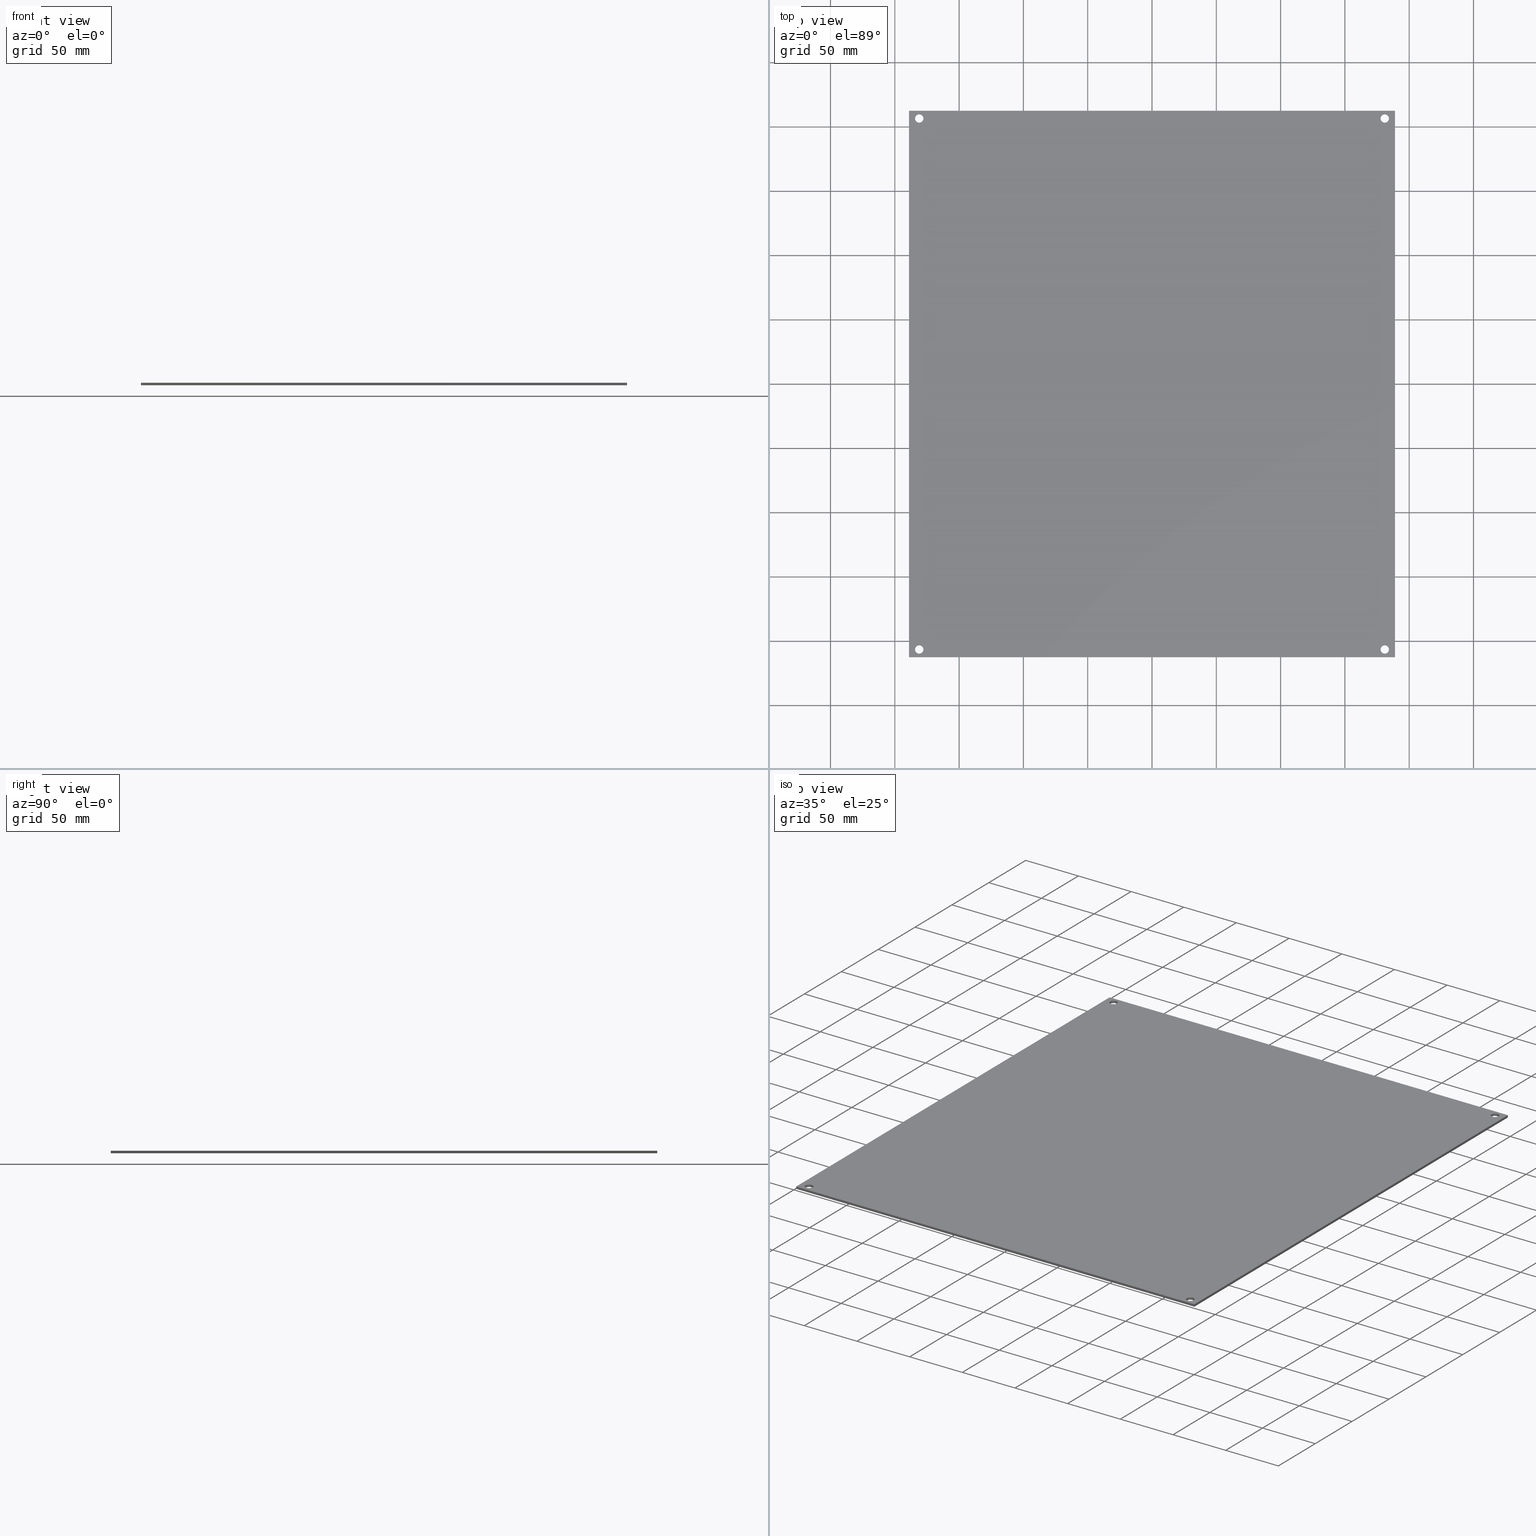
[diagram: canonical four-view strip — front | top / right | iso, engineering-drawing reading convention]
A machine part, canonical four-view strip (front | top / right | iso — engineering-drawing reading convention). The complete STEP part file that produces these views, byte-faithful:
ISO-10303-21;
HEADER;
FILE_DESCRIPTION (( 'STEP AP214' ),
    '1' );
FILE_NAME ('FIBOX_ABP1816.STEP',
    '2010-03-08T07:45:40',
    ( 'KennethW' ),
    ( 'FIBOX' ),
    'SwSTEP 2.0',
    'SolidWorks 2009',
    '' );
FILE_SCHEMA (( 'AUTOMOTIVE_DESIGN' ));
ENDSEC;

DATA;
#1 = ORIENTED_EDGE ( 'NONE', *, *, #137, .T. ) ;
#2 = EDGE_LOOP ( 'NONE', ( #4, #160, #167, #168 ) ) ;
#3 = ORIENTED_EDGE ( 'NONE', *, *, #24, .T. ) ;
#4 = ORIENTED_EDGE ( 'NONE', *, *, #59, .F. ) ;
#5 = ORIENTED_EDGE ( 'NONE', *, *, #6, .F. ) ;
#6 = EDGE_CURVE ( 'NONE', #66, #118, #399, .T. ) ;
#7 = ADVANCED_FACE ( 'NONE', ( #395 ), #394, .F. ) ;
#8 = EDGE_LOOP ( 'NONE', ( #9, #98, #60, #46 ) ) ;
#9 = ORIENTED_EDGE ( 'NONE', *, *, #54, .T. ) ;
#10 = VERTEX_POINT ( 'NONE', #392 ) ;
#11 = ORIENTED_EDGE ( 'NONE', *, *, #70, .T. ) ;
#12 = EDGE_CURVE ( 'NONE', #67, #65, #388, .T. ) ;
#13 = EDGE_CURVE ( 'NONE', #71, #10, #384, .T. ) ;
#14 = ADVANCED_FACE ( 'NONE', ( #380 ), #379, .F. ) ;
#15 = ORIENTED_EDGE ( 'NONE', *, *, #16, .T. ) ;
#16 = EDGE_CURVE ( 'NONE', #66, #68, #377, .T. ) ;
#17 = ORIENTED_EDGE ( 'NONE', *, *, #116, .T. ) ;
#18 = ORIENTED_EDGE ( 'NONE', *, *, #19, .F. ) ;
#19 = EDGE_CURVE ( 'NONE', #10, #65, #369, .T. ) ;
#20 = ORIENTED_EDGE ( 'NONE', *, *, #30, .T. ) ;
#21 = EDGE_LOOP ( 'NONE', ( #27, #1 ) ) ;
#22 = ORIENTED_EDGE ( 'NONE', *, *, #45, .T. ) ;
#23 = ORIENTED_EDGE ( 'NONE', *, *, #24, .F. ) ;
#24 = EDGE_CURVE ( 'NONE', #78, #114, #266, .T. ) ;
#25 = ORIENTED_EDGE ( 'NONE', *, *, #50, .F. ) ;
#26 = EDGE_LOOP ( 'NONE', ( #140, #23, #25, #36 ) ) ;
#27 = ORIENTED_EDGE ( 'NONE', *, *, #125, .T. ) ;
#28 = EDGE_LOOP ( 'NONE', ( #22, #32, #34, #144 ) ) ;
#29 = ADVANCED_FACE ( 'NONE', ( #262 ), #261, .F. ) ;
#30 = EDGE_CURVE ( 'NONE', #63, #86, #259, .T. ) ;
#31 = ADVANCED_FACE ( 'NONE', ( #252 ), #250, .F. ) ;
#32 = ORIENTED_EDGE ( 'NONE', *, *, #33, .F. ) ;
#33 = EDGE_CURVE ( 'NONE', #76, #43, #251, .T. ) ;
#34 = ORIENTED_EDGE ( 'NONE', *, *, #75, .F. ) ;
#35 = EDGE_LOOP ( 'NONE', ( #74, #142 ) ) ;
#36 = ORIENTED_EDGE ( 'NONE', *, *, #33, .T. ) ;
#37 = ADVANCED_FACE ( 'NONE', ( #242 ), #241, .F. ) ;
#38 = EDGE_LOOP ( 'NONE', ( #39, #40, #73, #3 ) ) ;
#39 = ORIENTED_EDGE ( 'NONE', *, *, #89, .T. ) ;
#40 = ORIENTED_EDGE ( 'NONE', *, *, #30, .F. ) ;
#41 = ORIENTED_EDGE ( 'NONE', *, *, #42, .F. ) ;
#42 = EDGE_CURVE ( 'NONE', #43, #114, #236, .T. ) ;
#43 = VERTEX_POINT ( 'NONE', #232 ) ;
#44 = ORIENTED_EDGE ( 'NONE', *, *, #45, .F. ) ;
#45 = EDGE_CURVE ( 'NONE', #87, #43, #231, .T. ) ;
#46 = ORIENTED_EDGE ( 'NONE', *, *, #96, .F. ) ;
#47 = EDGE_CURVE ( 'NONE', #63, #48, #227, .T. ) ;
#48 = VERTEX_POINT ( 'NONE', #223 ) ;
#49 = EDGE_LOOP ( 'NONE', ( #91, #92 ) ) ;
#50 = EDGE_CURVE ( 'NONE', #76, #78, #222, .T. ) ;
#51 = VERTEX_POINT ( 'NONE', #218 ) ;
#52 = ADVANCED_FACE ( 'NONE', ( #217, #216, #215, #214, #213 ), #212, .T. ) ;
#53 = ORIENTED_EDGE ( 'NONE', *, *, #75, .T. ) ;
#54 = EDGE_CURVE ( 'NONE', #51, #102, #207, .T. ) ;
#55 = ORIENTED_EDGE ( 'NONE', *, *, #70, .F. ) ;
#56 = ORIENTED_EDGE ( 'NONE', *, *, #57, .F. ) ;
#57 = EDGE_CURVE ( 'NONE', #68, #66, #202, .T. ) ;
#58 = EDGE_LOOP ( 'NONE', ( #90, #106 ) ) ;
#59 = EDGE_CURVE ( 'NONE', #102, #101, #197, .T. ) ;
#60 = ORIENTED_EDGE ( 'NONE', *, *, #100, .F. ) ;
#61 = EDGE_CURVE ( 'NONE', #102, #51, #193, .T. ) ;
#62 = ORIENTED_EDGE ( 'NONE', *, *, #47, .T. ) ;
#63 = VERTEX_POINT ( 'NONE', #188 ) ;
#64 = ORIENTED_EDGE ( 'NONE', *, *, #12, .T. ) ;
#65 = VERTEX_POINT ( 'NONE', #187 ) ;
#66 = VERTEX_POINT ( 'NONE', #186 ) ;
#67 = VERTEX_POINT ( 'NONE', #185 ) ;
#68 = VERTEX_POINT ( 'NONE', #184 ) ;
#69 = VERTEX_POINT ( 'NONE', #183 ) ;
#70 = EDGE_CURVE ( 'NONE', #71, #67, #182, .T. ) ;
#71 = VERTEX_POINT ( 'NONE', #177 ) ;
#72 = EDGE_CURVE ( 'NONE', #118, #69, #175, .T. ) ;
#73 = ORIENTED_EDGE ( 'NONE', *, *, #103, .F. ) ;
#74 = ORIENTED_EDGE ( 'NONE', *, *, #72, .T. ) ;
#75 = EDGE_CURVE ( 'NONE', #48, #76, #176, .T. ) ;
#76 = VERTEX_POINT ( 'NONE', #365 ) ;
#77 = ORIENTED_EDGE ( 'NONE', *, *, #50, .T. ) ;
#78 = VERTEX_POINT ( 'NONE', #364 ) ;
#79 = EDGE_CURVE ( 'NONE', #67, #71, #363, .T. ) ;
#80 = ORIENTED_EDGE ( 'NONE', *, *, #100, .T. ) ;
#81 = ORIENTED_EDGE ( 'NONE', *, *, #82, .T. ) ;
#82 = EDGE_CURVE ( 'NONE', #101, #110, #358, .T. ) ;
#83 = EDGE_LOOP ( 'NONE', ( #84, #88, #41, #44 ) ) ;
#84 = ORIENTED_EDGE ( 'NONE', *, *, #85, .F. ) ;
#85 = EDGE_CURVE ( 'NONE', #86, #87, #353, .T. ) ;
#86 = VERTEX_POINT ( 'NONE', #349 ) ;
#87 = VERTEX_POINT ( 'NONE', #348 ) ;
#88 = ORIENTED_EDGE ( 'NONE', *, *, #89, .F. ) ;
#89 = EDGE_CURVE ( 'NONE', #114, #86, #347, .T. ) ;
#90 = ORIENTED_EDGE ( 'NONE', *, *, #135, .F. ) ;
#91 = ORIENTED_EDGE ( 'NONE', *, *, #54, .F. ) ;
#92 = ORIENTED_EDGE ( 'NONE', *, *, #61, .F. ) ;
#93 = EDGE_LOOP ( 'NONE', ( #62, #53, #77, #99 ) ) ;
#94 = ORIENTED_EDGE ( 'NONE', *, *, #79, .F. ) ;
#95 = EDGE_CURVE ( 'NONE', #65, #10, #343, .T. ) ;
#96 = EDGE_CURVE ( 'NONE', #51, #110, #338, .T. ) ;
#97 = EDGE_LOOP ( 'NONE', ( #55, #94 ) ) ;
#98 = ORIENTED_EDGE ( 'NONE', *, *, #59, .T. ) ;
#99 = ORIENTED_EDGE ( 'NONE', *, *, #103, .T. ) ;
#100 = EDGE_CURVE ( 'NONE', #110, #101, #334, .T. ) ;
#101 = VERTEX_POINT ( 'NONE', #329 ) ;
#102 = VERTEX_POINT ( 'NONE', #328 ) ;
#103 = EDGE_CURVE ( 'NONE', #78, #63, #327, .T. ) ;
#104 = EDGE_LOOP ( 'NONE', ( #105, #56 ) ) ;
#105 = ORIENTED_EDGE ( 'NONE', *, *, #16, .F. ) ;
#106 = ORIENTED_EDGE ( 'NONE', *, *, #107, .F. ) ;
#107 = EDGE_CURVE ( 'NONE', #120, #136, #323, .T. ) ;
#108 = ADVANCED_FACE ( 'NONE', ( #318, #317, #316, #315, #314 ), #313, .F. ) ;
#109 = EDGE_LOOP ( 'NONE', ( #111, #112 ) ) ;
#110 = VERTEX_POINT ( 'NONE', #308 ) ;
#111 = ORIENTED_EDGE ( 'NONE', *, *, #19, .T. ) ;
#112 = ORIENTED_EDGE ( 'NONE', *, *, #95, .T. ) ;
#113 = EDGE_LOOP ( 'NONE', ( #80, #81 ) ) ;
#114 = VERTEX_POINT ( 'NONE', #307 ) ;
#115 = ORIENTED_EDGE ( 'NONE', *, *, #13, .F. ) ;
#116 = EDGE_CURVE ( 'NONE', #68, #69, #306, .T. ) ;
#117 = ORIENTED_EDGE ( 'NONE', *, *, #72, .F. ) ;
#118 = VERTEX_POINT ( 'NONE', #302 ) ;
#119 = EDGE_LOOP ( 'NONE', ( #15, #17, #117, #5 ) ) ;
#120 = VERTEX_POINT ( 'NONE', #301 ) ;
#121 = ORIENTED_EDGE ( 'NONE', *, *, #122, .T. ) ;
#122 = EDGE_CURVE ( 'NONE', #120, #123, #300, .T. ) ;
#123 = VERTEX_POINT ( 'NONE', #296 ) ;
#124 = ORIENTED_EDGE ( 'NONE', *, *, #125, .F. ) ;
#125 = EDGE_CURVE ( 'NONE', #126, #123, #295, .T. ) ;
#126 = VERTEX_POINT ( 'NONE', #290 ) ;
#127 = ORIENTED_EDGE ( 'NONE', *, *, #128, .F. ) ;
#128 = EDGE_CURVE ( 'NONE', #136, #126, #289, .T. ) ;
#129 = ADVANCED_FACE ( 'NONE', ( #285 ), #284, .F. ) ;
#130 = EDGE_LOOP ( 'NONE', ( #11, #64, #18, #115 ) ) ;
#131 = MANIFOLD_SOLID_BREP ( 'NONE', #157 ) ;
#132 = ADVANCED_FACE ( 'NONE', ( #404 ), #403, .F. ) ;
#133 = EDGE_LOOP ( 'NONE', ( #134, #121, #124, #127 ) ) ;
#134 = ORIENTED_EDGE ( 'NONE', *, *, #135, .T. ) ;
#135 = EDGE_CURVE ( 'NONE', #136, #120, #406, .T. ) ;
#136 = VERTEX_POINT ( 'NONE', #419 ) ;
#137 = EDGE_CURVE ( 'NONE', #123, #126, #417, .T. ) ;
#138 = ORIENTED_EDGE ( 'NONE', *, *, #146, .F. ) ;
#139 = ADVANCED_FACE ( 'NONE', ( #418 ), #411, .F. ) ;
#140 = ORIENTED_EDGE ( 'NONE', *, *, #42, .T. ) ;
#141 = EDGE_LOOP ( 'NONE', ( #143, #138, #147, #20 ) ) ;
#142 = ORIENTED_EDGE ( 'NONE', *, *, #145, .T. ) ;
#143 = ORIENTED_EDGE ( 'NONE', *, *, #85, .T. ) ;
#144 = ORIENTED_EDGE ( 'NONE', *, *, #146, .T. ) ;
#145 = EDGE_CURVE ( 'NONE', #69, #118, #443, .T. ) ;
#146 = EDGE_CURVE ( 'NONE', #48, #87, #461, .T. ) ;
#147 = ORIENTED_EDGE ( 'NONE', *, *, #47, .F. ) ;
#148 = ORIENTED_EDGE ( 'NONE', *, *, #13, .T. ) ;
#149 = ORIENTED_EDGE ( 'NONE', *, *, #95, .F. ) ;
#150 = ADVANCED_FACE ( 'NONE', ( #439 ), #427, .F. ) ;
#151 = EDGE_LOOP ( 'NONE', ( #152, #154, #155, #156 ) ) ;
#152 = ORIENTED_EDGE ( 'NONE', *, *, #122, .F. ) ;
#153 = EDGE_LOOP ( 'NONE', ( #166, #163, #169, #162 ) ) ;
#154 = ORIENTED_EDGE ( 'NONE', *, *, #107, .T. ) ;
#155 = ORIENTED_EDGE ( 'NONE', *, *, #128, .T. ) ;
#156 = ORIENTED_EDGE ( 'NONE', *, *, #137, .F. ) ;
#157 = CLOSED_SHELL ( 'NONE', ( #132, #129, #14, #7, #52, #108, #29, #31, #139, #37, #170, #165, #158, #150 ) ) ;
#158 = ADVANCED_FACE ( 'NONE', ( #432 ), #433, .F. ) ;
#159 = EDGE_LOOP ( 'NONE', ( #161, #164, #148, #149 ) ) ;
#160 = ORIENTED_EDGE ( 'NONE', *, *, #61, .T. ) ;
#161 = ORIENTED_EDGE ( 'NONE', *, *, #12, .F. ) ;
#162 = ORIENTED_EDGE ( 'NONE', *, *, #145, .F. ) ;
#163 = ORIENTED_EDGE ( 'NONE', *, *, #57, .T. ) ;
#164 = ORIENTED_EDGE ( 'NONE', *, *, #79, .T. ) ;
#165 = ADVANCED_FACE ( 'NONE', ( #434 ), #458, .F. ) ;
#166 = ORIENTED_EDGE ( 'NONE', *, *, #116, .F. ) ;
#167 = ORIENTED_EDGE ( 'NONE', *, *, #96, .T. ) ;
#168 = ORIENTED_EDGE ( 'NONE', *, *, #82, .F. ) ;
#169 = ORIENTED_EDGE ( 'NONE', *, *, #6, .T. ) ;
#170 = ADVANCED_FACE ( 'NONE', ( #456 ), #452, .F. ) ;
#171 = DIRECTION ( 'NONE',  ( 1.000000000000000000, 0.0000000000000000000, 0.0000000000000000000 ) ) ;
#172 = DIRECTION ( 'NONE',  ( 0.0000000000000000000, 0.0000000000000000000, 1.000000000000000000 ) ) ;
#173 = CARTESIAN_POINT ( 'NONE',  ( 181.0000000000000000, 206.5000000000000000, 0.0000000000000000000 ) ) ;
#174 = AXIS2_PLACEMENT_3D ( 'NONE', #173, #172, #171 ) ;
#175 = CIRCLE ( 'NONE', #174, 3.250000000000002700 ) ;
#176 = LINE ( 'NONE', #368, #367 ) ;
#177 = CARTESIAN_POINT ( 'NONE',  ( 177.7500000000000000, -206.5000000000000000, 2.000000000000000000 ) ) ;
#178 = DIRECTION ( 'NONE',  ( 1.000000000000000000, 0.0000000000000000000, 0.0000000000000000000 ) ) ;
#179 = DIRECTION ( 'NONE',  ( 0.0000000000000000000, 0.0000000000000000000, 1.000000000000000000 ) ) ;
#180 = CARTESIAN_POINT ( 'NONE',  ( 181.0000000000000000, -206.5000000000000000, 2.000000000000000000 ) ) ;
#181 = AXIS2_PLACEMENT_3D ( 'NONE', #180, #179, #178 ) ;
#182 = CIRCLE ( 'NONE', #181, 3.250000000000002700 ) ;
#183 = CARTESIAN_POINT ( 'NONE',  ( 184.2500000000000000, 206.5000000000000000, 0.0000000000000000000 ) ) ;
#184 = CARTESIAN_POINT ( 'NONE',  ( 184.2500000000000000, 206.5000000000000000, 2.000000000000000000 ) ) ;
#185 = CARTESIAN_POINT ( 'NONE',  ( 184.2500000000000000, -206.5000000000000000, 2.000000000000000000 ) ) ;
#186 = CARTESIAN_POINT ( 'NONE',  ( 177.7500000000000000, 206.5000000000000000, 2.000000000000000000 ) ) ;
#187 = CARTESIAN_POINT ( 'NONE',  ( 184.2500000000000000, -206.5000000000000000, 0.0000000000000000000 ) ) ;
#188 = CARTESIAN_POINT ( 'NONE',  ( -189.0000000000000000, 212.5000000000000000, 2.000000000000000000 ) ) ;
#189 = DIRECTION ( 'NONE',  ( 1.000000000000000000, 0.0000000000000000000, 0.0000000000000000000 ) ) ;
#190 = DIRECTION ( 'NONE',  ( 0.0000000000000000000, 0.0000000000000000000, 1.000000000000000000 ) ) ;
#191 = CARTESIAN_POINT ( 'NONE',  ( -181.0000000000000000, 206.5000000000000000, 2.000000000000000000 ) ) ;
#192 = AXIS2_PLACEMENT_3D ( 'NONE', #191, #190, #189 ) ;
#193 = CIRCLE ( 'NONE', #192, 3.250000000000002700 ) ;
#194 = DIRECTION ( 'NONE',  ( -0.0000000000000000000, -0.0000000000000000000, -1.000000000000000000 ) ) ;
#195 = VECTOR ( 'NONE', #194, 1000.000000000000000 ) ;
#196 = CARTESIAN_POINT ( 'NONE',  ( -177.7500000000000000, 206.5000000000000000, 2.000000000000000000 ) ) ;
#197 = LINE ( 'NONE', #196, #195 ) ;
#198 = DIRECTION ( 'NONE',  ( 1.000000000000000000, 0.0000000000000000000, 0.0000000000000000000 ) ) ;
#199 = DIRECTION ( 'NONE',  ( 0.0000000000000000000, 0.0000000000000000000, 1.000000000000000000 ) ) ;
#200 = CARTESIAN_POINT ( 'NONE',  ( 181.0000000000000000, 206.5000000000000000, 2.000000000000000000 ) ) ;
#201 = AXIS2_PLACEMENT_3D ( 'NONE', #200, #199, #198 ) ;
#202 = CIRCLE ( 'NONE', #201, 3.250000000000002700 ) ;
#203 = DIRECTION ( 'NONE',  ( 1.000000000000000000, 0.0000000000000000000, 0.0000000000000000000 ) ) ;
#204 = DIRECTION ( 'NONE',  ( 0.0000000000000000000, 0.0000000000000000000, 1.000000000000000000 ) ) ;
#205 = CARTESIAN_POINT ( 'NONE',  ( -181.0000000000000000, 206.5000000000000000, 2.000000000000000000 ) ) ;
#206 = AXIS2_PLACEMENT_3D ( 'NONE', #205, #204, #203 ) ;
#207 = CIRCLE ( 'NONE', #206, 3.250000000000002700 ) ;
#208 = DIRECTION ( 'NONE',  ( 1.000000000000000000, 0.0000000000000000000, 0.0000000000000000000 ) ) ;
#209 = DIRECTION ( 'NONE',  ( -0.0000000000000000000, 0.0000000000000000000, 1.000000000000000000 ) ) ;
#210 = CARTESIAN_POINT ( 'NONE',  ( -189.0000000000000300, -212.5000000000000000, 2.000000000000000000 ) ) ;
#211 = AXIS2_PLACEMENT_3D ( 'NONE', #210, #209, #208 ) ;
#212 = PLANE ( 'NONE',  #211 ) ;
#213 = FACE_BOUND ( 'NONE', #58, .T. ) ;
#214 = FACE_BOUND ( 'NONE', #104, .T. ) ;
#215 = FACE_OUTER_BOUND ( 'NONE', #93, .T. ) ;
#216 = FACE_BOUND ( 'NONE', #49, .T. ) ;
#217 = FACE_BOUND ( 'NONE', #97, .T. ) ;
#218 = CARTESIAN_POINT ( 'NONE',  ( -184.2500000000000000, 206.5000000000000000, 2.000000000000000000 ) ) ;
#219 = DIRECTION ( 'NONE',  ( -6.530723674265626900E-017, 1.000000000000000000, -0.0000000000000000000 ) ) ;
#220 = VECTOR ( 'NONE', #219, 1000.000000000000000 ) ;
#221 = CARTESIAN_POINT ( 'NONE',  ( 189.0000000000000000, 212.5000000000000000, 2.000000000000000000 ) ) ;
#222 = LINE ( 'NONE', #221, #220 ) ;
#223 = CARTESIAN_POINT ( 'NONE',  ( -189.0000000000000300, -212.5000000000000000, 2.000000000000000000 ) ) ;
#224 = DIRECTION ( 'NONE',  ( -6.530723674265626900E-017, -1.000000000000000000, 0.0000000000000000000 ) ) ;
#225 = VECTOR ( 'NONE', #224, 1000.000000000000000 ) ;
#226 = CARTESIAN_POINT ( 'NONE',  ( -189.0000000000000000, 212.5000000000000000, 2.000000000000000000 ) ) ;
#227 = LINE ( 'NONE', #226, #225 ) ;
#228 = DIRECTION ( 'NONE',  ( 1.000000000000000000, 0.0000000000000000000, 0.0000000000000000000 ) ) ;
#229 = VECTOR ( 'NONE', #228, 1000.000000000000000 ) ;
#230 = CARTESIAN_POINT ( 'NONE',  ( -189.0000000000000300, -212.5000000000000000, 0.0000000000000000000 ) ) ;
#231 = LINE ( 'NONE', #230, #229 ) ;
#232 = CARTESIAN_POINT ( 'NONE',  ( 189.0000000000000300, -212.5000000000000000, 0.0000000000000000000 ) ) ;
#233 = DIRECTION ( 'NONE',  ( -6.530723674265626900E-017, 1.000000000000000000, -0.0000000000000000000 ) ) ;
#234 = VECTOR ( 'NONE', #233, 1000.000000000000000 ) ;
#235 = CARTESIAN_POINT ( 'NONE',  ( 189.0000000000000000, 212.5000000000000000, 0.0000000000000000000 ) ) ;
#236 = LINE ( 'NONE', #235, #234 ) ;
#237 = DIRECTION ( 'NONE',  ( 0.0000000000000000000, -0.0000000000000000000, -1.000000000000000000 ) ) ;
#238 = DIRECTION ( 'NONE',  ( 0.0000000000000000000, -1.000000000000000000, 0.0000000000000000000 ) ) ;
#239 = CARTESIAN_POINT ( 'NONE',  ( -189.0000000000000000, 212.5000000000000000, 2.000000000000000000 ) ) ;
#240 = AXIS2_PLACEMENT_3D ( 'NONE', #239, #238, #237 ) ;
#241 = PLANE ( 'NONE',  #240 ) ;
#242 = FACE_OUTER_BOUND ( 'NONE', #38, .T. ) ;
#243 = DIRECTION ( 'NONE',  ( -0.0000000000000000000, -0.0000000000000000000, -1.000000000000000000 ) ) ;
#244 = VECTOR ( 'NONE', #243, 1000.000000000000000 ) ;
#245 = CARTESIAN_POINT ( 'NONE',  ( 189.0000000000000300, -212.5000000000000000, 2.000000000000000000 ) ) ;
#246 = DIRECTION ( 'NONE',  ( 0.0000000000000000000, -0.0000000000000000000, 1.000000000000000000 ) ) ;
#247 = DIRECTION ( 'NONE',  ( 0.0000000000000000000, 1.000000000000000000, 0.0000000000000000000 ) ) ;
#248 = CARTESIAN_POINT ( 'NONE',  ( -189.0000000000000300, -212.5000000000000000, 2.000000000000000000 ) ) ;
#249 = AXIS2_PLACEMENT_3D ( 'NONE', #248, #247, #246 ) ;
#250 = PLANE ( 'NONE',  #249 ) ;
#251 = LINE ( 'NONE', #245, #244 ) ;
#252 = FACE_OUTER_BOUND ( 'NONE', #28, .T. ) ;
#253 = DIRECTION ( 'NONE',  ( -0.0000000000000000000, -0.0000000000000000000, -1.000000000000000000 ) ) ;
#254 = VECTOR ( 'NONE', #253, 1000.000000000000000 ) ;
#255 = CARTESIAN_POINT ( 'NONE',  ( -189.0000000000000000, 212.5000000000000000, 2.000000000000000000 ) ) ;
#256 = DIRECTION ( 'NONE',  ( 6.530723674265626900E-017, 1.000000000000000000, 0.0000000000000000000 ) ) ;
#257 = DIRECTION ( 'NONE',  ( 1.000000000000000000, -6.530723674265626900E-017, 0.0000000000000000000 ) ) ;
#258 = CARTESIAN_POINT ( 'NONE',  ( -189.0000000000000000, 212.5000000000000000, 2.000000000000000000 ) ) ;
#259 = LINE ( 'NONE', #255, #254 ) ;
#260 = AXIS2_PLACEMENT_3D ( 'NONE', #258, #257, #256 ) ;
#261 = PLANE ( 'NONE',  #260 ) ;
#262 = FACE_OUTER_BOUND ( 'NONE', #141, .T. ) ;
#263 = DIRECTION ( 'NONE',  ( -0.0000000000000000000, -0.0000000000000000000, -1.000000000000000000 ) ) ;
#264 = VECTOR ( 'NONE', #263, 1000.000000000000000 ) ;
#265 = CARTESIAN_POINT ( 'NONE',  ( 189.0000000000000000, 212.5000000000000000, 2.000000000000000000 ) ) ;
#266 = LINE ( 'NONE', #265, #264 ) ;
#267 = DIRECTION ( 'NONE',  ( 1.000000000000000000, 0.0000000000000000000, 0.0000000000000000000 ) ) ;
#268 = DIRECTION ( 'NONE',  ( 0.0000000000000000000, 0.0000000000000000000, 1.000000000000000000 ) ) ;
#269 = CARTESIAN_POINT ( 'NONE',  ( 181.0000000000000000, -206.5000000000000000, 0.0000000000000000000 ) ) ;
#270 = AXIS2_PLACEMENT_3D ( 'NONE', #269, #268, #267 ) ;
#271 = PRESENTATION_LAYER_ASSIGNMENT (  '', '', ( #272 ) ) ;
#272 = STYLED_ITEM ( 'NONE', ( #273 ), #131 ) ;
#273 = PRESENTATION_STYLE_ASSIGNMENT (( #274 ) ) ;
#274 = SURFACE_STYLE_USAGE ( .BOTH. , #275 ) ;
#275 = SURFACE_SIDE_STYLE ('',( #276 ) ) ;
#276 = SURFACE_STYLE_FILL_AREA ( #277 ) ;
#277 = FILL_AREA_STYLE ('',( #282 ) ) ;
#278 = DIRECTION ( 'NONE',  ( -1.000000000000000000, 0.0000000000000000000, 0.0000000000000000000 ) ) ;
#279 = DIRECTION ( 'NONE',  ( -0.0000000000000000000, -0.0000000000000000000, -1.000000000000000000 ) ) ;
#280 = AXIS2_PLACEMENT_3D ( 'NONE', #283, #279, #278 ) ;
#281 = COLOUR_RGB ( '',0.7529411764705882200, 0.7529411764705882200, 0.7529411764705882200 ) ;
#282 = FILL_AREA_STYLE_COLOUR ( '', #281 ) ;
#283 = CARTESIAN_POINT ( 'NONE',  ( 181.0000000000000000, -206.5000000000000000, 2.000000000000000000 ) ) ;
#284 = CYLINDRICAL_SURFACE ( 'NONE', #280, 3.250000000000002700 ) ;
#285 = FACE_OUTER_BOUND ( 'NONE', #130, .T. ) ;
#286 = DIRECTION ( 'NONE',  ( -0.0000000000000000000, -0.0000000000000000000, -1.000000000000000000 ) ) ;
#287 = VECTOR ( 'NONE', #286, 1000.000000000000000 ) ;
#288 = CARTESIAN_POINT ( 'NONE',  ( -184.2500000000000000, -206.5000000000000000, 2.000000000000000000 ) ) ;
#289 = LINE ( 'NONE', #288, #287 ) ;
#290 = CARTESIAN_POINT ( 'NONE',  ( -184.2500000000000000, -206.5000000000000000, 0.0000000000000000000 ) ) ;
#291 = DIRECTION ( 'NONE',  ( 1.000000000000000000, 0.0000000000000000000, 0.0000000000000000000 ) ) ;
#292 = DIRECTION ( 'NONE',  ( 0.0000000000000000000, 0.0000000000000000000, 1.000000000000000000 ) ) ;
#293 = CARTESIAN_POINT ( 'NONE',  ( -181.0000000000000000, -206.5000000000000000, 0.0000000000000000000 ) ) ;
#294 = AXIS2_PLACEMENT_3D ( 'NONE', #293, #292, #291 ) ;
#295 = CIRCLE ( 'NONE', #294, 3.250000000000002700 ) ;
#296 = CARTESIAN_POINT ( 'NONE',  ( -177.7500000000000000, -206.5000000000000000, 0.0000000000000000000 ) ) ;
#297 = DIRECTION ( 'NONE',  ( -0.0000000000000000000, -0.0000000000000000000, -1.000000000000000000 ) ) ;
#298 = VECTOR ( 'NONE', #297, 1000.000000000000000 ) ;
#299 = CARTESIAN_POINT ( 'NONE',  ( -177.7500000000000000, -206.5000000000000000, 2.000000000000000000 ) ) ;
#300 = LINE ( 'NONE', #299, #298 ) ;
#301 = CARTESIAN_POINT ( 'NONE',  ( -177.7500000000000000, -206.5000000000000000, 2.000000000000000000 ) ) ;
#302 = CARTESIAN_POINT ( 'NONE',  ( 177.7500000000000000, 206.5000000000000000, 0.0000000000000000000 ) ) ;
#303 = DIRECTION ( 'NONE',  ( -0.0000000000000000000, -0.0000000000000000000, -1.000000000000000000 ) ) ;
#304 = VECTOR ( 'NONE', #303, 1000.000000000000000 ) ;
#305 = CARTESIAN_POINT ( 'NONE',  ( 184.2500000000000000, 206.5000000000000000, 2.000000000000000000 ) ) ;
#306 = LINE ( 'NONE', #305, #304 ) ;
#307 = CARTESIAN_POINT ( 'NONE',  ( 189.0000000000000000, 212.5000000000000000, 0.0000000000000000000 ) ) ;
#308 = CARTESIAN_POINT ( 'NONE',  ( -184.2500000000000000, 206.5000000000000000, 0.0000000000000000000 ) ) ;
#309 = DIRECTION ( 'NONE',  ( 1.000000000000000000, 0.0000000000000000000, 0.0000000000000000000 ) ) ;
#310 = DIRECTION ( 'NONE',  ( -0.0000000000000000000, 0.0000000000000000000, 1.000000000000000000 ) ) ;
#311 = CARTESIAN_POINT ( 'NONE',  ( -189.0000000000000300, -212.5000000000000000, 0.0000000000000000000 ) ) ;
#312 = AXIS2_PLACEMENT_3D ( 'NONE', #311, #310, #309 ) ;
#313 = PLANE ( 'NONE',  #312 ) ;
#314 = FACE_BOUND ( 'NONE', #21, .T. ) ;
#315 = FACE_BOUND ( 'NONE', #35, .T. ) ;
#316 = FACE_OUTER_BOUND ( 'NONE', #83, .T. ) ;
#317 = FACE_BOUND ( 'NONE', #113, .T. ) ;
#318 = FACE_BOUND ( 'NONE', #109, .T. ) ;
#319 = DIRECTION ( 'NONE',  ( 1.000000000000000000, 0.0000000000000000000, 0.0000000000000000000 ) ) ;
#320 = DIRECTION ( 'NONE',  ( 0.0000000000000000000, 0.0000000000000000000, 1.000000000000000000 ) ) ;
#321 = CARTESIAN_POINT ( 'NONE',  ( -181.0000000000000000, -206.5000000000000000, 2.000000000000000000 ) ) ;
#322 = AXIS2_PLACEMENT_3D ( 'NONE', #321, #320, #319 ) ;
#323 = CIRCLE ( 'NONE', #322, 3.250000000000002700 ) ;
#324 = DIRECTION ( 'NONE',  ( -1.000000000000000000, -0.0000000000000000000, -0.0000000000000000000 ) ) ;
#325 = VECTOR ( 'NONE', #324, 1000.000000000000000 ) ;
#326 = CARTESIAN_POINT ( 'NONE',  ( -189.0000000000000000, 212.5000000000000000, 2.000000000000000000 ) ) ;
#327 = LINE ( 'NONE', #326, #325 ) ;
#328 = CARTESIAN_POINT ( 'NONE',  ( -177.7500000000000000, 206.5000000000000000, 2.000000000000000000 ) ) ;
#329 = CARTESIAN_POINT ( 'NONE',  ( -177.7500000000000000, 206.5000000000000000, 0.0000000000000000000 ) ) ;
#330 = DIRECTION ( 'NONE',  ( 1.000000000000000000, 0.0000000000000000000, 0.0000000000000000000 ) ) ;
#331 = DIRECTION ( 'NONE',  ( 0.0000000000000000000, 0.0000000000000000000, 1.000000000000000000 ) ) ;
#332 = CARTESIAN_POINT ( 'NONE',  ( -181.0000000000000000, 206.5000000000000000, 0.0000000000000000000 ) ) ;
#333 = AXIS2_PLACEMENT_3D ( 'NONE', #332, #331, #330 ) ;
#334 = CIRCLE ( 'NONE', #333, 3.250000000000002700 ) ;
#335 = DIRECTION ( 'NONE',  ( -0.0000000000000000000, -0.0000000000000000000, -1.000000000000000000 ) ) ;
#336 = VECTOR ( 'NONE', #335, 1000.000000000000000 ) ;
#337 = CARTESIAN_POINT ( 'NONE',  ( -184.2500000000000000, 206.5000000000000000, 2.000000000000000000 ) ) ;
#338 = LINE ( 'NONE', #337, #336 ) ;
#339 = DIRECTION ( 'NONE',  ( 1.000000000000000000, 0.0000000000000000000, 0.0000000000000000000 ) ) ;
#340 = DIRECTION ( 'NONE',  ( 0.0000000000000000000, 0.0000000000000000000, 1.000000000000000000 ) ) ;
#341 = CARTESIAN_POINT ( 'NONE',  ( 181.0000000000000000, -206.5000000000000000, 0.0000000000000000000 ) ) ;
#342 = AXIS2_PLACEMENT_3D ( 'NONE', #341, #340, #339 ) ;
#343 = CIRCLE ( 'NONE', #342, 3.250000000000002700 ) ;
#344 = DIRECTION ( 'NONE',  ( -1.000000000000000000, -0.0000000000000000000, -0.0000000000000000000 ) ) ;
#345 = VECTOR ( 'NONE', #344, 1000.000000000000000 ) ;
#346 = CARTESIAN_POINT ( 'NONE',  ( -189.0000000000000000, 212.5000000000000000, 0.0000000000000000000 ) ) ;
#347 = LINE ( 'NONE', #346, #345 ) ;
#348 = CARTESIAN_POINT ( 'NONE',  ( -189.0000000000000300, -212.5000000000000000, 0.0000000000000000000 ) ) ;
#349 = CARTESIAN_POINT ( 'NONE',  ( -189.0000000000000000, 212.5000000000000000, 0.0000000000000000000 ) ) ;
#350 = DIRECTION ( 'NONE',  ( -6.530723674265626900E-017, -1.000000000000000000, 0.0000000000000000000 ) ) ;
#351 = VECTOR ( 'NONE', #350, 1000.000000000000000 ) ;
#352 = CARTESIAN_POINT ( 'NONE',  ( -189.0000000000000000, 212.5000000000000000, 0.0000000000000000000 ) ) ;
#353 = LINE ( 'NONE', #352, #351 ) ;
#354 = DIRECTION ( 'NONE',  ( 1.000000000000000000, 0.0000000000000000000, 0.0000000000000000000 ) ) ;
#355 = DIRECTION ( 'NONE',  ( 0.0000000000000000000, 0.0000000000000000000, 1.000000000000000000 ) ) ;
#356 = CARTESIAN_POINT ( 'NONE',  ( -181.0000000000000000, 206.5000000000000000, 0.0000000000000000000 ) ) ;
#357 = AXIS2_PLACEMENT_3D ( 'NONE', #356, #355, #354 ) ;
#358 = CIRCLE ( 'NONE', #357, 3.250000000000002700 ) ;
#359 = DIRECTION ( 'NONE',  ( 1.000000000000000000, 0.0000000000000000000, 0.0000000000000000000 ) ) ;
#360 = DIRECTION ( 'NONE',  ( 0.0000000000000000000, 0.0000000000000000000, 1.000000000000000000 ) ) ;
#361 = CARTESIAN_POINT ( 'NONE',  ( 181.0000000000000000, -206.5000000000000000, 2.000000000000000000 ) ) ;
#362 = AXIS2_PLACEMENT_3D ( 'NONE', #361, #360, #359 ) ;
#363 = CIRCLE ( 'NONE', #362, 3.250000000000002700 ) ;
#364 = CARTESIAN_POINT ( 'NONE',  ( 189.0000000000000000, 212.5000000000000000, 2.000000000000000000 ) ) ;
#365 = CARTESIAN_POINT ( 'NONE',  ( 189.0000000000000300, -212.5000000000000000, 2.000000000000000000 ) ) ;
#366 = DIRECTION ( 'NONE',  ( 1.000000000000000000, 0.0000000000000000000, 0.0000000000000000000 ) ) ;
#367 = VECTOR ( 'NONE', #366, 1000.000000000000000 ) ;
#368 = CARTESIAN_POINT ( 'NONE',  ( -189.0000000000000300, -212.5000000000000000, 2.000000000000000000 ) ) ;
#369 = CIRCLE ( 'NONE', #270, 3.250000000000002700 ) ;
#370 = DIRECTION ( 'NONE',  ( 1.000000000000000000, 0.0000000000000000000, 0.0000000000000000000 ) ) ;
#371 = DIRECTION ( 'NONE',  ( 0.0000000000000000000, 0.0000000000000000000, 1.000000000000000000 ) ) ;
#372 = CARTESIAN_POINT ( 'NONE',  ( 181.0000000000000000, 206.5000000000000000, 2.000000000000000000 ) ) ;
#373 = AXIS2_PLACEMENT_3D ( 'NONE', #372, #371, #370 ) ;
#374 = DIRECTION ( 'NONE',  ( -1.000000000000000000, 0.0000000000000000000, 0.0000000000000000000 ) ) ;
#375 = DIRECTION ( 'NONE',  ( -0.0000000000000000000, -0.0000000000000000000, -1.000000000000000000 ) ) ;
#376 = AXIS2_PLACEMENT_3D ( 'NONE', #378, #375, #374 ) ;
#377 = CIRCLE ( 'NONE', #373, 3.250000000000002700 ) ;
#378 = CARTESIAN_POINT ( 'NONE',  ( 181.0000000000000000, 206.5000000000000000, 2.000000000000000000 ) ) ;
#379 = CYLINDRICAL_SURFACE ( 'NONE', #376, 3.250000000000002700 ) ;
#380 = FACE_OUTER_BOUND ( 'NONE', #119, .T. ) ;
#381 = DIRECTION ( 'NONE',  ( -0.0000000000000000000, -0.0000000000000000000, -1.000000000000000000 ) ) ;
#382 = VECTOR ( 'NONE', #381, 1000.000000000000000 ) ;
#383 = CARTESIAN_POINT ( 'NONE',  ( 177.7500000000000000, -206.5000000000000000, 2.000000000000000000 ) ) ;
#384 = LINE ( 'NONE', #383, #382 ) ;
#385 = DIRECTION ( 'NONE',  ( -0.0000000000000000000, -0.0000000000000000000, -1.000000000000000000 ) ) ;
#386 = VECTOR ( 'NONE', #385, 1000.000000000000000 ) ;
#387 = CARTESIAN_POINT ( 'NONE',  ( 184.2500000000000000, -206.5000000000000000, 2.000000000000000000 ) ) ;
#388 = LINE ( 'NONE', #387, #386 ) ;
#389 = DIRECTION ( 'NONE',  ( -1.000000000000000000, 0.0000000000000000000, 0.0000000000000000000 ) ) ;
#390 = DIRECTION ( 'NONE',  ( -0.0000000000000000000, -0.0000000000000000000, -1.000000000000000000 ) ) ;
#391 = AXIS2_PLACEMENT_3D ( 'NONE', #393, #390, #389 ) ;
#392 = CARTESIAN_POINT ( 'NONE',  ( 177.7500000000000000, -206.5000000000000000, 0.0000000000000000000 ) ) ;
#393 = CARTESIAN_POINT ( 'NONE',  ( -181.0000000000000000, 206.5000000000000000, 2.000000000000000000 ) ) ;
#394 = CYLINDRICAL_SURFACE ( 'NONE', #391, 3.250000000000002700 ) ;
#395 = FACE_OUTER_BOUND ( 'NONE', #8, .T. ) ;
#396 = DIRECTION ( 'NONE',  ( -0.0000000000000000000, -0.0000000000000000000, -1.000000000000000000 ) ) ;
#397 = VECTOR ( 'NONE', #396, 1000.000000000000000 ) ;
#398 = CARTESIAN_POINT ( 'NONE',  ( 177.7500000000000000, 206.5000000000000000, 2.000000000000000000 ) ) ;
#399 = LINE ( 'NONE', #398, #397 ) ;
#400 = MECHANICAL_DESIGN_GEOMETRIC_PRESENTATION_REPRESENTATION (  '', ( #272 ), #405 ) ;
#401 =( NAMED_UNIT ( * ) SI_UNIT ( $, .STERADIAN. ) SOLID_ANGLE_UNIT ( ) );
#402 = UNCERTAINTY_MEASURE_WITH_UNIT (LENGTH_MEASURE( 1.000000000000000100E-005 ), #425, 'distance_accuracy_value', 'NONE');
#403 = CYLINDRICAL_SURFACE ( 'NONE', #410, 3.250000000000002700 ) ;
#404 = FACE_OUTER_BOUND ( 'NONE', #133, .T. ) ;
#405 =( GEOMETRIC_REPRESENTATION_CONTEXT ( 3 ) GLOBAL_UNCERTAINTY_ASSIGNED_CONTEXT ( ( #402 ) ) GLOBAL_UNIT_ASSIGNED_CONTEXT ( ( #425, #424, #401 ) ) REPRESENTATION_CONTEXT ( 'NONE', 'WORKASPACE' ) );
#406 = CIRCLE ( 'NONE', #423, 3.250000000000002700 ) ;
#407 = DIRECTION ( 'NONE',  ( -1.000000000000000000, 0.0000000000000000000, 0.0000000000000000000 ) ) ;
#408 = DIRECTION ( 'NONE',  ( -0.0000000000000000000, -0.0000000000000000000, -1.000000000000000000 ) ) ;
#409 = CARTESIAN_POINT ( 'NONE',  ( -181.0000000000000000, -206.5000000000000000, 2.000000000000000000 ) ) ;
#410 = AXIS2_PLACEMENT_3D ( 'NONE', #409, #408, #407 ) ;
#411 = PLANE ( 'NONE',  #412 ) ;
#412 = AXIS2_PLACEMENT_3D ( 'NONE', #429, #441, #428 ) ;
#413 = DIRECTION ( 'NONE',  ( 1.000000000000000000, 0.0000000000000000000, 0.0000000000000000000 ) ) ;
#414 = DIRECTION ( 'NONE',  ( 0.0000000000000000000, 0.0000000000000000000, 1.000000000000000000 ) ) ;
#415 = CARTESIAN_POINT ( 'NONE',  ( -181.0000000000000000, -206.5000000000000000, 0.0000000000000000000 ) ) ;
#416 = AXIS2_PLACEMENT_3D ( 'NONE', #415, #414, #413 ) ;
#417 = CIRCLE ( 'NONE', #416, 3.250000000000002700 ) ;
#418 = FACE_OUTER_BOUND ( 'NONE', #26, .T. ) ;
#419 = CARTESIAN_POINT ( 'NONE',  ( -184.2500000000000000, -206.5000000000000000, 2.000000000000000000 ) ) ;
#420 = DIRECTION ( 'NONE',  ( 1.000000000000000000, 0.0000000000000000000, 0.0000000000000000000 ) ) ;
#421 = DIRECTION ( 'NONE',  ( 0.0000000000000000000, 0.0000000000000000000, 1.000000000000000000 ) ) ;
#422 = CARTESIAN_POINT ( 'NONE',  ( -181.0000000000000000, -206.5000000000000000, 2.000000000000000000 ) ) ;
#423 = AXIS2_PLACEMENT_3D ( 'NONE', #422, #421, #420 ) ;
#424 =( NAMED_UNIT ( * ) PLANE_ANGLE_UNIT ( ) SI_UNIT ( $, .RADIAN. ) );
#425 =( LENGTH_UNIT ( ) NAMED_UNIT ( * ) SI_UNIT ( .MILLI., .METRE. ) );
#426 = DIRECTION ( 'NONE',  ( -0.0000000000000000000, -0.0000000000000000000, -1.000000000000000000 ) ) ;
#427 = CYLINDRICAL_SURFACE ( 'NONE', #438, 3.250000000000002700 ) ;
#428 = DIRECTION ( 'NONE',  ( 6.530723674265626900E-017, -1.000000000000000000, 0.0000000000000000000 ) ) ;
#429 = CARTESIAN_POINT ( 'NONE',  ( 189.0000000000000000, 212.5000000000000000, 2.000000000000000000 ) ) ;
#430 = DIRECTION ( 'NONE',  ( -1.000000000000000000, 0.0000000000000000000, 0.0000000000000000000 ) ) ;
#431 = DIRECTION ( 'NONE',  ( -0.0000000000000000000, -0.0000000000000000000, -1.000000000000000000 ) ) ;
#432 = FACE_OUTER_BOUND ( 'NONE', #159, .T. ) ;
#433 = CYLINDRICAL_SURFACE ( 'NONE', #436, 3.250000000000002700 ) ;
#434 = FACE_OUTER_BOUND ( 'NONE', #153, .T. ) ;
#435 = CARTESIAN_POINT ( 'NONE',  ( 181.0000000000000000, -206.5000000000000000, 2.000000000000000000 ) ) ;
#436 = AXIS2_PLACEMENT_3D ( 'NONE', #435, #460, #459 ) ;
#437 = CARTESIAN_POINT ( 'NONE',  ( -181.0000000000000000, -206.5000000000000000, 2.000000000000000000 ) ) ;
#438 = AXIS2_PLACEMENT_3D ( 'NONE', #437, #431, #430 ) ;
#439 = FACE_OUTER_BOUND ( 'NONE', #151, .T. ) ;
#440 = CARTESIAN_POINT ( 'NONE',  ( -189.0000000000000300, -212.5000000000000000, 2.000000000000000000 ) ) ;
#441 = DIRECTION ( 'NONE',  ( -1.000000000000000000, -6.530723674265626900E-017, 0.0000000000000000000 ) ) ;
#442 = DIRECTION ( 'NONE',  ( 1.000000000000000000, 0.0000000000000000000, 0.0000000000000000000 ) ) ;
#443 = CIRCLE ( 'NONE', #445, 3.250000000000002700 ) ;
#444 = DIRECTION ( 'NONE',  ( 0.0000000000000000000, 0.0000000000000000000, 1.000000000000000000 ) ) ;
#445 = AXIS2_PLACEMENT_3D ( 'NONE', #446, #444, #442 ) ;
#446 = CARTESIAN_POINT ( 'NONE',  ( 181.0000000000000000, 206.5000000000000000, 0.0000000000000000000 ) ) ;
#447 = VECTOR ( 'NONE', #426, 1000.000000000000000 ) ;
#448 = DIRECTION ( 'NONE',  ( -1.000000000000000000, 0.0000000000000000000, 0.0000000000000000000 ) ) ;
#449 = DIRECTION ( 'NONE',  ( -0.0000000000000000000, -0.0000000000000000000, -1.000000000000000000 ) ) ;
#450 = AXIS2_PLACEMENT_3D ( 'NONE', #451, #449, #448 ) ;
#451 = CARTESIAN_POINT ( 'NONE',  ( -181.0000000000000000, 206.5000000000000000, 2.000000000000000000 ) ) ;
#452 = CYLINDRICAL_SURFACE ( 'NONE', #450, 3.250000000000002700 ) ;
#453 = DIRECTION ( 'NONE',  ( -1.000000000000000000, 0.0000000000000000000, 0.0000000000000000000 ) ) ;
#454 = DIRECTION ( 'NONE',  ( -0.0000000000000000000, -0.0000000000000000000, -1.000000000000000000 ) ) ;
#455 = AXIS2_PLACEMENT_3D ( 'NONE', #457, #454, #453 ) ;
#456 = FACE_OUTER_BOUND ( 'NONE', #2, .T. ) ;
#457 = CARTESIAN_POINT ( 'NONE',  ( 181.0000000000000000, 206.5000000000000000, 2.000000000000000000 ) ) ;
#458 = CYLINDRICAL_SURFACE ( 'NONE', #455, 3.250000000000002700 ) ;
#459 = DIRECTION ( 'NONE',  ( -1.000000000000000000, 0.0000000000000000000, 0.0000000000000000000 ) ) ;
#460 = DIRECTION ( 'NONE',  ( -0.0000000000000000000, -0.0000000000000000000, -1.000000000000000000 ) ) ;
#461 = LINE ( 'NONE', #440, #447 ) ;
#462 = UNCERTAINTY_MEASURE_WITH_UNIT (LENGTH_MEASURE( 1.000000000000000100E-005 ), #474, 'distance_accuracy_value', 'NONE');
#463 =( GEOMETRIC_REPRESENTATION_CONTEXT ( 3 ) GLOBAL_UNCERTAINTY_ASSIGNED_CONTEXT ( ( #462 ) ) GLOBAL_UNIT_ASSIGNED_CONTEXT ( ( #474, #473, #469 ) ) REPRESENTATION_CONTEXT ( 'NONE', 'WORKASPACE' ) );
#464 = APPLICATION_CONTEXT ( 'automotive_design' ) ;
#465 = SHAPE_DEFINITION_REPRESENTATION ( #475, #466 ) ;
#466 = ADVANCED_BREP_SHAPE_REPRESENTATION ( 'FIBOX_ABP1816', ( #131, #487 ), #463 ) ;
#467 = UNCERTAINTY_MEASURE_WITH_UNIT (LENGTH_MEASURE( 1.000000000000000100E-005 ), #471, 'distance_accuracy_value', 'NONE');
#468 =( NAMED_UNIT ( * ) SI_UNIT ( $, .STERADIAN. ) SOLID_ANGLE_UNIT ( ) );
#469 =( NAMED_UNIT ( * ) SI_UNIT ( $, .STERADIAN. ) SOLID_ANGLE_UNIT ( ) );
#470 =( NAMED_UNIT ( * ) PLANE_ANGLE_UNIT ( ) SI_UNIT ( $, .RADIAN. ) );
#471 =( LENGTH_UNIT ( ) NAMED_UNIT ( * ) SI_UNIT ( .MILLI., .METRE. ) );
#472 = CARTESIAN_POINT ( 'NONE',  ( 0.0000000000000000000, 0.0000000000000000000, 0.0000000000000000000 ) ) ;
#473 =( NAMED_UNIT ( * ) PLANE_ANGLE_UNIT ( ) SI_UNIT ( $, .RADIAN. ) );
#474 =( LENGTH_UNIT ( ) NAMED_UNIT ( * ) SI_UNIT ( .MILLI., .METRE. ) );
#475 = PRODUCT_DEFINITION_SHAPE ( 'NONE', 'NONE',  #478 ) ;
#476 = PRODUCT_RELATED_PRODUCT_CATEGORY ( 'part', '', ( #482 ) ) ;
#477 = PRODUCT_DEFINITION_FORMATION_WITH_SPECIFIED_SOURCE ( 'ANY', '', #482, .NOT_KNOWN. ) ;
#478 = PRODUCT_DEFINITION ( 'UNKNOWN', '', #477, #479 ) ;
#479 = PRODUCT_DEFINITION_CONTEXT ( 'detailed design', #481, 'design' ) ;
#480 = APPLICATION_PROTOCOL_DEFINITION ( 'draft international standard', 'automotive_design', 1998, #481 ) ;
#481 = APPLICATION_CONTEXT ( 'automotive_design' ) ;
#482 = PRODUCT ( 'FIBOX_ABP1816', 'FIBOX_ABP1816', '', ( #483 ) ) ;
#483 = PRODUCT_CONTEXT ( 'NONE', #464, 'mechanical' ) ;
#484 = APPLICATION_PROTOCOL_DEFINITION ( 'draft international standard', 'automotive_design', 1998, #464 ) ;
#485 = DIRECTION ( 'NONE',  ( 1.000000000000000000, 0.0000000000000000000, 0.0000000000000000000 ) ) ;
#486 = DIRECTION ( 'NONE',  ( 0.0000000000000000000, 0.0000000000000000000, 1.000000000000000000 ) ) ;
#487 = AXIS2_PLACEMENT_3D ( 'NONE', #472, #486, #485 ) ;
#488 =( GEOMETRIC_REPRESENTATION_CONTEXT ( 3 ) GLOBAL_UNCERTAINTY_ASSIGNED_CONTEXT ( ( #467 ) ) GLOBAL_UNIT_ASSIGNED_CONTEXT ( ( #471, #470, #468 ) ) REPRESENTATION_CONTEXT ( 'NONE', 'WORKASPACE' ) );
#489 = MECHANICAL_DESIGN_GEOMETRIC_PRESENTATION_REPRESENTATION (  '', ( #491 ), #488 ) ;
#490 = PRESENTATION_LAYER_ASSIGNMENT (  '', '', ( #491 ) ) ;
#491 = STYLED_ITEM ( 'NONE', ( #492 ), #466 ) ;
#492 = PRESENTATION_STYLE_ASSIGNMENT (( #493 ) ) ;
#493 = SURFACE_STYLE_USAGE ( .BOTH. , #494 ) ;
#494 = SURFACE_SIDE_STYLE ('',( #495 ) ) ;
#495 = SURFACE_STYLE_FILL_AREA ( #496 ) ;
#496 = FILL_AREA_STYLE ('',( #497 ) ) ;
#497 = FILL_AREA_STYLE_COLOUR ( '', #498 ) ;
#498 = COLOUR_RGB ( '',0.7529411764705882200, 0.7529411764705882200, 0.7529411764705882200 ) ;
ENDSEC;
END-ISO-10303-21;
